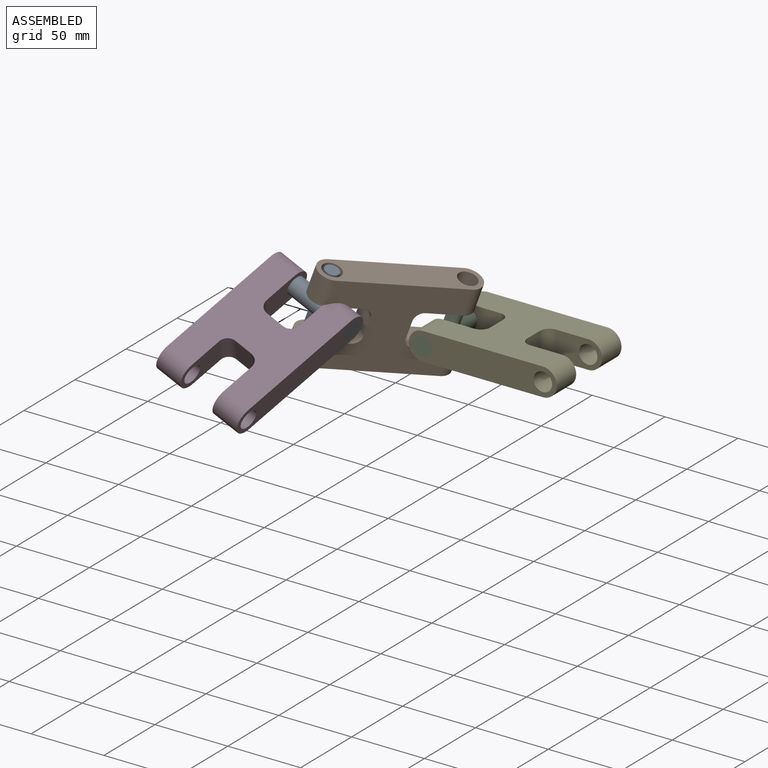
[diagram: assembled view]
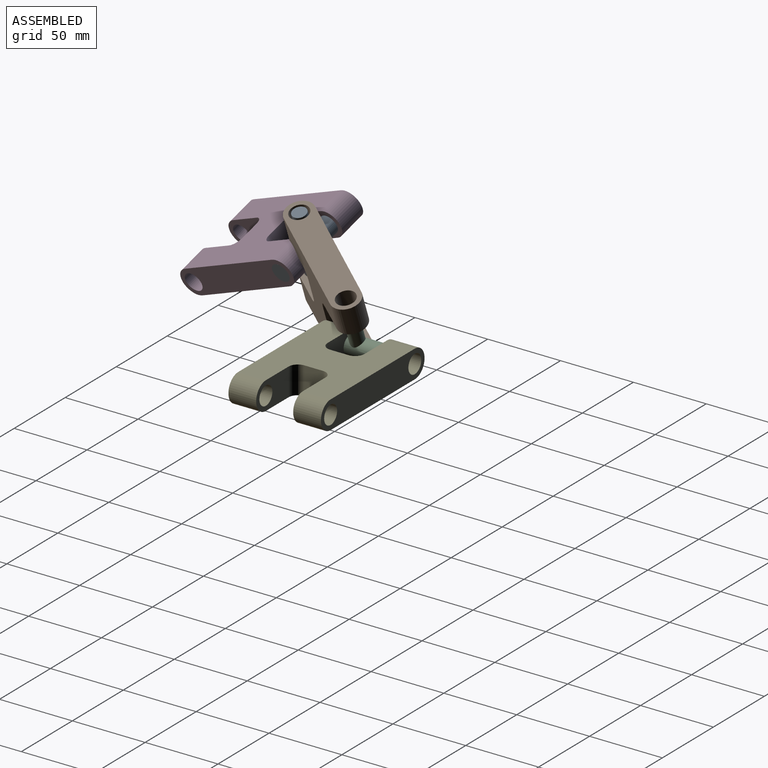
[diagram: assembled view, second angle]
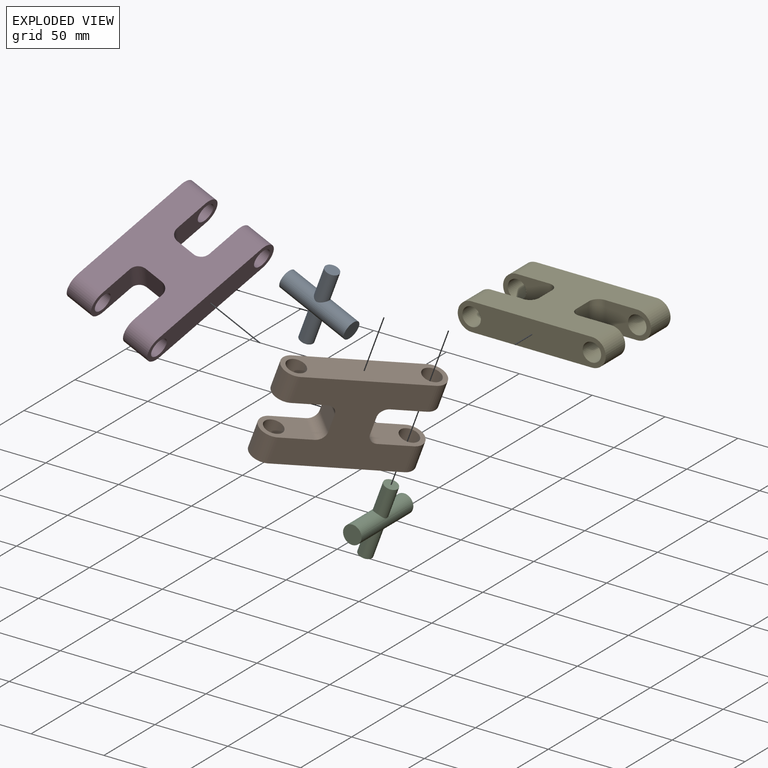
[diagram: exploded view]
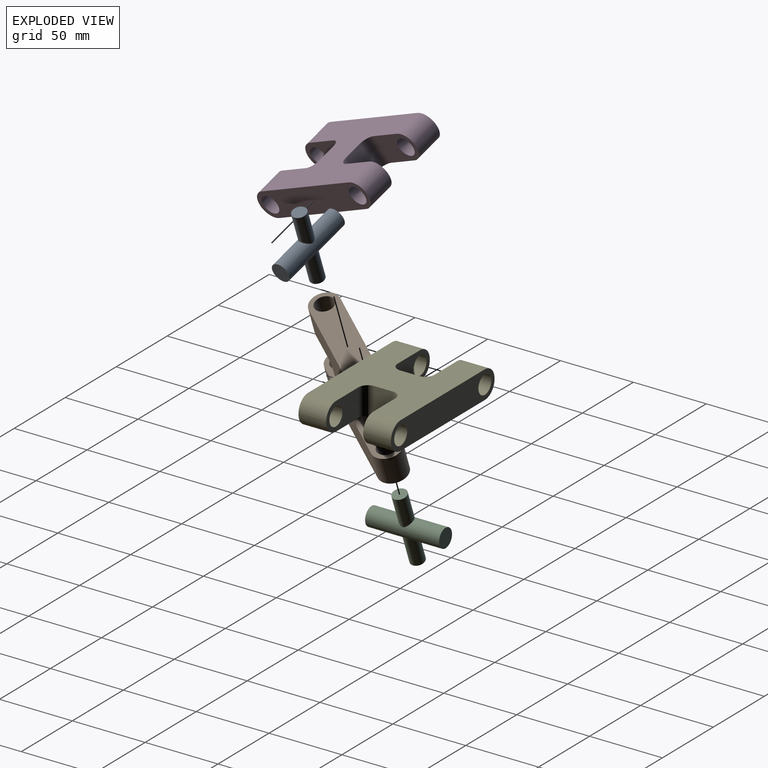
[diagram: exploded view, second angle]
ASSEMBLY  parts=5 mates=4
PART A: 7 faces, bbox 50.8x50.8x12.7 mm
  f0: cylinder r=4.76mm len=21.2mm, axis (0,1,0), area 600.5mm2, adj f1,f2
  f1: plane 9.53x9.53mm, normal (0,-1,0), area 71.3mm2, adj f0
  f2: cylinder r=6.35mm len=50.8mm, axis (-1,0,0), area 1871.2mm2, adj f0,f3,f4,f6
  f3: plane 12.7x12.7mm, normal (1,0,0), area 126.7mm2, adj f2
  f4: plane 12.7x12.7mm, normal (-1,0,0), area 126.7mm2, adj f2
  f5: plane 9.53x9.53mm, normal (0,1,0), area 71.3mm2, adj f6
  f6: cylinder r=4.76mm len=21.2mm, axis (0,1,0), area 600.6mm2, adj f2,f5
PART B: 22 faces, bbox 101.6x63.5x19.1 mm
  f0: plane 31.75x19.05mm, normal (0,-1,0), area 439.2mm2, adj f8,f9,f13,f17,f18
  f1: plane 19.05x12.7mm, normal (-1,0,0), area 241.9mm2, adj f8,f9,f18,f19
  f2: plane 31.75x19.05mm, normal (0,1,0), area 439.2mm2, adj f8,f9,f12,f16,f19
  f3: plane 101.6x19.05mm, normal (0,-1,0), area 1604.2mm2, adj f8,f9,f11,f12,f15,f16
  f4: plane 31.75x19.05mm, normal (0,1,0), area 439.2mm2, adj f8,f9,f11,f15,f20
  f5: plane 19.05x12.7mm, normal (1,0,0), area 241.9mm2, adj f8,f9,f20,f21
  f6: plane 31.75x19.05mm, normal (0,-1,0), area 439.2mm2, adj f8,f9,f10,f14,f21
  f7: plane 101.6x19.05mm, normal (0,1,0), area 1604.2mm2, adj f8,f9,f10,f13,f14,f17
  f8: plane 82.55x63.5mm, normal (0,0,1), area 3824.9mm2, adj f0,f1,f2,f3,f4,f5,f6,f7
  f9: plane 82.55x63.5mm, normal (0,0,-1), area 3824.9mm2, adj f0,f1,f2,f3,f4,f5,f6,f7
  f10: cylinder r=9.53mm len=19.05mm, axis (0,-1,0), area 570mm2, adj f6,f7,f8,f9
  f11: cylinder r=9.53mm len=19.05mm, axis (0,-1,0), area 570mm2, adj f3,f4,f8,f9
  f12: cylinder r=9.53mm len=19.05mm, axis (0,1,0), area 570mm2, adj f2,f3,f8,f9
  f13: cylinder r=9.53mm len=19.05mm, axis (0,1,0), area 570mm2, adj f0,f7,f8,f9
  f14: cylinder r=6.35mm len=19.05mm, axis (0,1,0), area 760.1mm2, adj f6,f7
  f15: cylinder r=6.35mm len=19.05mm, axis (0,1,0), area 760.1mm2, adj f3,f4
  f16: cylinder r=6.35mm len=19.05mm, axis (0,1,0), area 760.1mm2, adj f2,f3
  f17: cylinder r=6.35mm len=19.05mm, axis (0,1,0), area 760.1mm2, adj f0,f7
  f18: cylinder r=6.35mm len=19.05mm, axis (0,0,1), area 190mm2, adj f0,f1,f8,f9
  f19: cylinder r=6.35mm len=19.05mm, axis (0,0,-1), area 190mm2, adj f1,f2,f8,f9
  f20: cylinder r=6.35mm len=19.05mm, axis (0,0,-1), area 190mm2, adj f4,f5,f8,f9
  f21: cylinder r=6.35mm len=19.05mm, axis (0,0,1), area 190mm2, adj f5,f6,f8,f9
PART C: same geometry as A
PART D: same geometry as B
PART E: same geometry as B
PLACE A rot(axis=(-0.16,-0.7,-0.69),169.3deg) t=(-380.69,-59.86,73.62)mm
PLACE B rot(axis=(0.21,-0.63,-0.75),130.6deg) t=(-342.91,-179.3,52.8)mm
PLACE C rot(axis=(-0.63,0.63,-0.44),132.4deg) t=(-219.08,-133.35,0)mm
PLACE D rot(axis=(0.05,0.34,-0.94),103.7deg) t=(-319.38,-265.54,-54.78)mm
PLACE E at identity fixed
MATE revolute B.f16 <-> C.f0  axis (0.35,0,0.94) through (-227.92,-6.35,-23.81)mm
MATE revolute A.f0 <-> B.f10  axis (0.35,0,0.94) through (-253.3,-71.52,53.37)mm
MATE revolute C.f2 <-> E.f16  axis (0,-1,0) through (-219.08,-31.75,0)mm
MATE revolute D.f16 <-> A.f2  axis (0.93,-0.09,-0.35) through (-238.44,-73.85,20.75)mm
